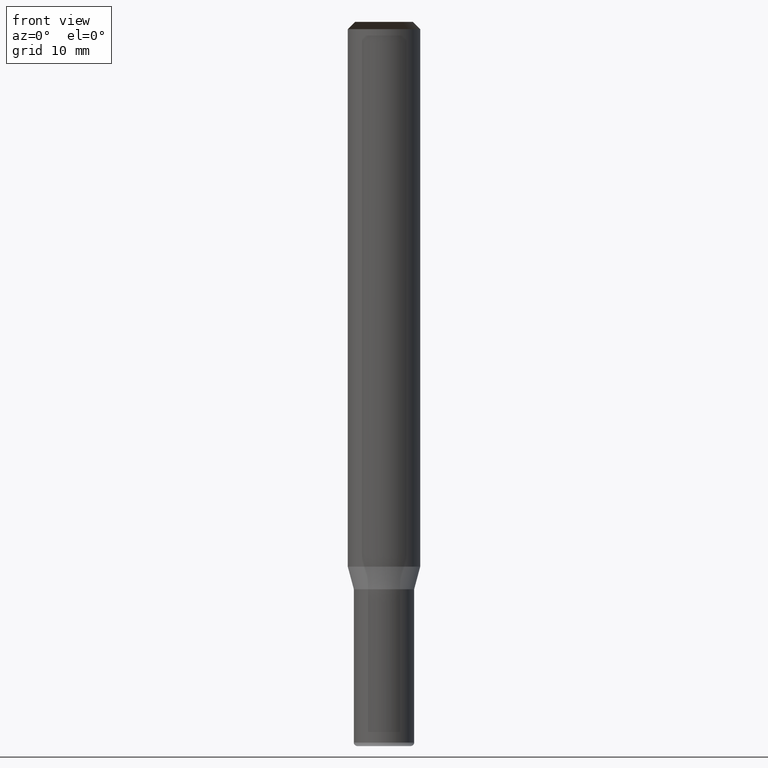
[diagram: clean part render]
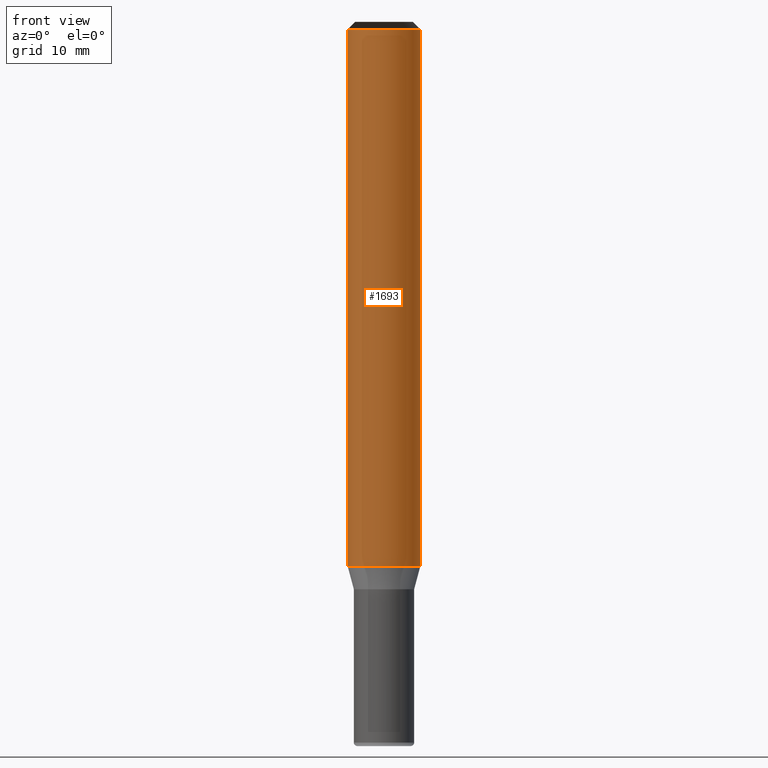
[diagram: same view with one face highlighted and labeled with its STEP entity id]
A machine part, front view. The second image highlights one B-rep face of the part: STEP entity #1693.
In plain terms, the highlighted face is a freeform B-spline surface patch.
Its self-contained STEP definition (entity closure, byte-faithful):
#1364=CARTESIAN_POINT('',(3.0,0.0,0.0));
#1368=CARTESIAN_POINT('',(-3.0,0.0,0.0));
#1369=CARTESIAN_POINT('',(3.0,0.0,44.533974596216));
#1373=CARTESIAN_POINT('',(-3.0,0.0,44.533974596216));
#1380=CARTESIAN_POINT('',(-3.0,-3.0,0.0));
#1381=CARTESIAN_POINT('',(0.0,-3.0,0.0));
#1382=CARTESIAN_POINT('',(3.0,-3.0,0.0));
#1383=CARTESIAN_POINT('',(-3.0,-3.0,44.533974596216));
#1384=CARTESIAN_POINT('',(0.0,-3.0,44.533974596216));
#1385=CARTESIAN_POINT('',(3.0,-3.0,44.533974596216));
#1674=(
BOUNDED_SURFACE()
B_SPLINE_SURFACE(1,2,(
(#1368,#1380,#1381,#1382,#1364),
(#1373,#1383,#1384,#1385,#1369)
), .UNSPECIFIED.,.F.,.F.,.F.)
B_SPLINE_SURFACE_WITH_KNOTS((2,2),(3,2,3),(
0.0,1.0),(
0.0,0.5,1.0), .UNSPECIFIED.)
GEOMETRIC_REPRESENTATION_ITEM()
RATIONAL_B_SPLINE_SURFACE(((1.0,0.707106781187,1.0,0.707106781187,1.0),
(1.0,0.707106781187,1.0,0.707106781187,1.0)
))
REPRESENTATION_ITEM('')
SURFACE()
);
#1675=(
BOUNDED_CURVE()
B_SPLINE_CURVE(1,(#1373,#1368),.UNSPECIFIED.,.F.,.F.)
B_SPLINE_CURVE_WITH_KNOTS((2,2),
(0.0,1.0),.UNSPECIFIED.)
CURVE()
GEOMETRIC_REPRESENTATION_ITEM()
RATIONAL_B_SPLINE_CURVE((1.0,1.0))
REPRESENTATION_ITEM('')
);
#1676=(
BOUNDED_CURVE()
B_SPLINE_CURVE(2,(#1368,#1380,#1381,#1382,#1364),.UNSPECIFIED.,.F.,.F.)
B_SPLINE_CURVE_WITH_KNOTS((3,2,3),
(0.0,0.5,1.0),.UNSPECIFIED.)
CURVE()
GEOMETRIC_REPRESENTATION_ITEM()
RATIONAL_B_SPLINE_CURVE((1.0,0.707106781187,1.0,0.707106781187,1.0))
REPRESENTATION_ITEM('')
);
#1677=(
BOUNDED_CURVE()
B_SPLINE_CURVE(1,(#1364,#1369),.UNSPECIFIED.,.F.,.F.)
B_SPLINE_CURVE_WITH_KNOTS((2,2),
(0.0,1.0),.UNSPECIFIED.)
CURVE()
GEOMETRIC_REPRESENTATION_ITEM()
RATIONAL_B_SPLINE_CURVE((1.0,1.0))
REPRESENTATION_ITEM('')
);
#1678=(
BOUNDED_CURVE()
B_SPLINE_CURVE(2,(#1369,#1385,#1384,#1383,#1373),.UNSPECIFIED.,.F.,.F.)
B_SPLINE_CURVE_WITH_KNOTS((3,2,3),
(0.0,0.5,1.0),.UNSPECIFIED.)
CURVE()
GEOMETRIC_REPRESENTATION_ITEM()
RATIONAL_B_SPLINE_CURVE((1.0,0.707106781187,1.0,0.707106781187,1.0))
REPRESENTATION_ITEM('')
);
#1679=VERTEX_POINT('',#1364);
#1680=VERTEX_POINT('',#1368);
#1681=VERTEX_POINT('',#1369);
#1682=VERTEX_POINT('',#1373);
#1683=EDGE_CURVE('',#1682,#1680,#1675,.T.);
#1684=EDGE_CURVE('',#1680,#1679,#1676,.T.);
#1685=EDGE_CURVE('',#1679,#1681,#1677,.T.);
#1686=EDGE_CURVE('',#1681,#1682,#1678,.T.);
#1687=ORIENTED_EDGE('',*,*,#1683,.T.);
#1688=ORIENTED_EDGE('',*,*,#1684,.T.);
#1689=ORIENTED_EDGE('',*,*,#1685,.T.);
#1690=ORIENTED_EDGE('',*,*,#1686,.T.);
#1691=EDGE_LOOP('',(#1687,#1688,#1689,#1690));
#1692=FACE_OUTER_BOUND('',#1691,.T.);
#1693=ADVANCED_FACE('',(#1692),#1674,.T.);